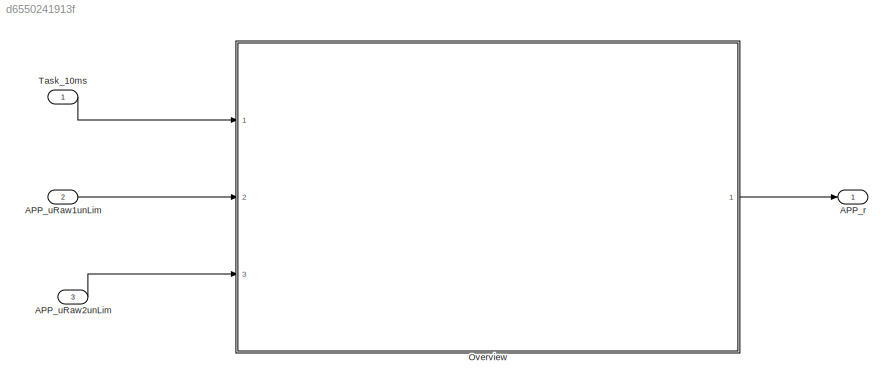
MODEL slx_d6550241913f
KIND model
CONFIG AbsTol = auto
CONFIG EnableMultiTasking = off
CONFIG FixedStep = auto
CONFIG MaxStep = auto
CONFIG MinStep = auto
CONFIG RelTol = 1e-3
CONFIG SampleTimeConstraint = Unconstrained
CONFIG SolverName = VariableStepAuto
CONFIG StartTime = 0.0
CONFIG StopTime = 10.0
BLOCK [Outport] APP_r
BLOCK [Inport] APP_uRaw1unLim
  Port = 2
BLOCK [Inport] APP_uRaw2unLim
  Port = 3
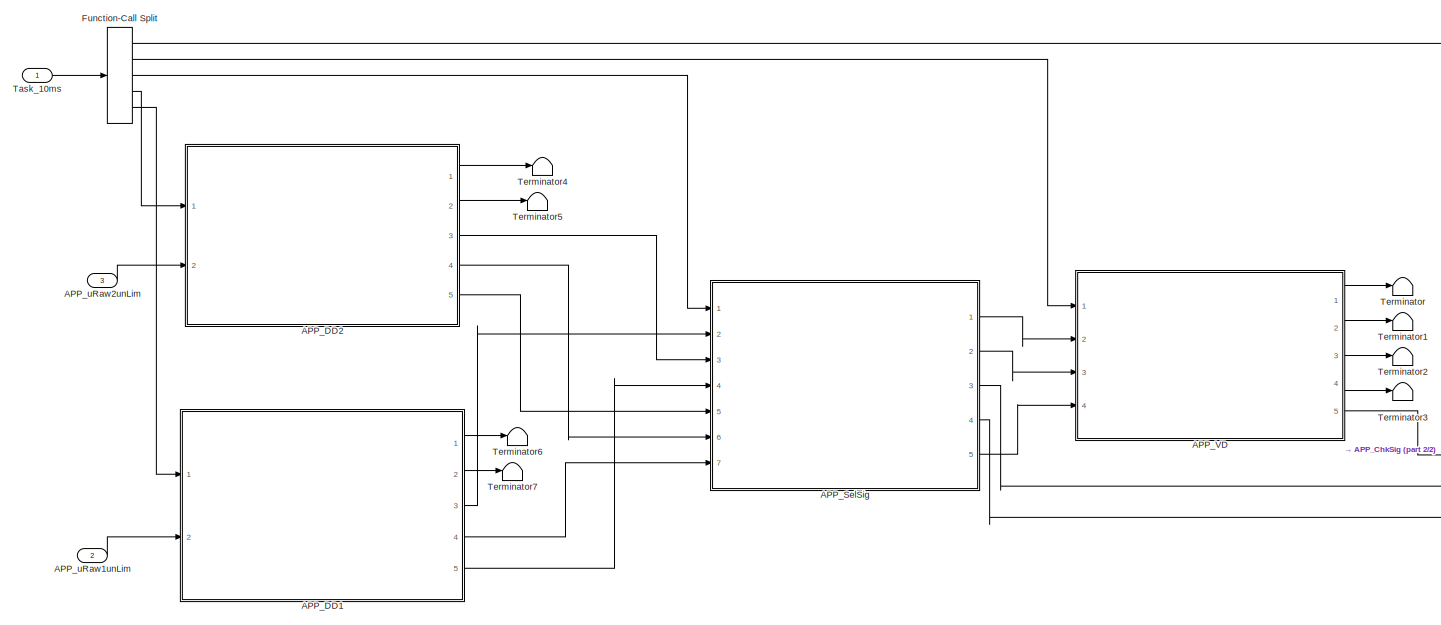
[diagram: Overview - part 1/2, most of the canvas]
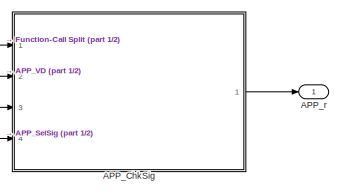
[diagram: Overview - part 2/2, bottom right region]
BLOCK [SubSystem] Overview
  Ports = [3, 1]
  RequestExecContextInheritance = off
BLOCK [ModelReference] Overview/APP_ChkSig
  ModelNameDialog = APP_ChkSig
  ModelReferenceVersion = 6.0
  Ports = [4, 1]
  ScheduleRates = on
BLOCK [ModelReference] Overview/APP_DD1
  ModelNameDialog = APP_DD1
  ModelReferenceVersion = 6.0
  Ports = [2, 5]
  ScheduleRates = on
BLOCK [ModelReference] Overview/APP_DD2
  ModelNameDialog = APP_DD2
  ModelReferenceVersion = 6.1
  Ports = [2, 5]
  ScheduleRates = on
BLOCK [ModelReference] Overview/APP_SelSig
  ModelNameDialog = APP_SelSig
  ModelReferenceVersion = 6.1
  Ports = [7, 5]
  ScheduleRates = on
BLOCK [ModelReference] Overview/APP_VD
  ModelNameDialog = APP_VD
  ModelReferenceVersion = 6.0
  Ports = [4, 5]
  ScheduleRates = on
BLOCK [Outport] Overview/APP_r
  VectorParamsAs1DForOutWhenUnconnected = off
BLOCK [Inport] Overview/APP_uRaw1unLim
  Port = 2
BLOCK [Inport] Overview/APP_uRaw2unLim
  Port = 3
BLOCK [FunctionCallSplit] Overview/Function-Call Split
  IconShape = distinctive
  NumOutputPorts = 5
  OutputPortLayout = default
  Ports = [1, 5]
BLOCK [Inport] Overview/Task_10ms
BLOCK [Terminator] Overview/Terminator
BLOCK [Terminator] Overview/Terminator1
BLOCK [Terminator] Overview/Terminator2
BLOCK [Terminator] Overview/Terminator3
BLOCK [Terminator] Overview/Terminator4
BLOCK [Terminator] Overview/Terminator5
BLOCK [Terminator] Overview/Terminator6
BLOCK [Terminator] Overview/Terminator7
BLOCK [Inport] Task_10ms
  OutputFunctionCall = on
LINE APP_uRaw1unLim:1 -> Overview:2
LINE APP_uRaw2unLim:1 -> Overview:3
LINE Overview/APP_ChkSig:1 -> Overview/APP_r:1
LINE Overview/APP_DD1:1 -> Overview/Terminator6:1
LINE Overview/APP_DD1:2 -> Overview/Terminator7:1
LINE Overview/APP_DD1:3 -> Overview/APP_SelSig:2
LINE Overview/APP_DD1:4 -> Overview/APP_SelSig:7
LINE Overview/APP_DD1:5 -> Overview/APP_SelSig:4
LINE Overview/APP_DD2:1 -> Overview/Terminator4:1
LINE Overview/APP_DD2:2 -> Overview/Terminator5:1
LINE Overview/APP_DD2:3 -> Overview/APP_SelSig:3
LINE Overview/APP_DD2:4 -> Overview/APP_SelSig:6
LINE Overview/APP_DD2:5 -> Overview/APP_SelSig:5
LINE Overview/APP_SelSig:1 -> Overview/APP_VD:2
LINE Overview/APP_SelSig:2 -> Overview/APP_VD:3
LINE Overview/APP_SelSig:3 -> Overview/APP_ChkSig:3
LINE Overview/APP_SelSig:4 -> Overview/APP_ChkSig:4
LINE Overview/APP_SelSig:5 -> Overview/APP_VD:4
LINE Overview/APP_VD:1 -> Overview/Terminator:1
LINE Overview/APP_VD:2 -> Overview/Terminator1:1
LINE Overview/APP_VD:3 -> Overview/Terminator2:1
LINE Overview/APP_VD:4 -> Overview/Terminator3:1
LINE Overview/APP_VD:5 -> Overview/APP_ChkSig:2
LINE Overview/APP_uRaw1unLim:1 -> Overview/APP_DD1:2
LINE Overview/APP_uRaw2unLim:1 -> Overview/APP_DD2:2
LINE Overview/Function-Call Split:1 -> Overview/APP_ChkSig:1
LINE Overview/Function-Call Split:2 -> Overview/APP_VD:1
LINE Overview/Function-Call Split:3 -> Overview/APP_SelSig:1
LINE Overview/Function-Call Split:4 -> Overview/APP_DD2:1
LINE Overview/Function-Call Split:5 -> Overview/APP_DD1:1
LINE Overview/Task_10ms:1 -> Overview/Function-Call Split:1
LINE Overview:1 -> APP_r:1
LINE Task_10ms:1 -> Overview:1
